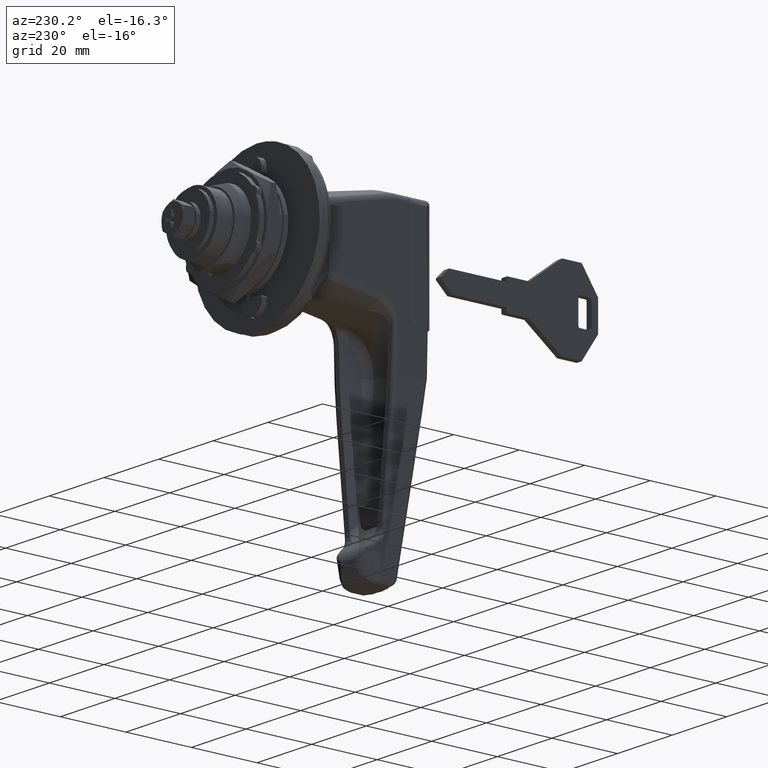
[diagram: clean part render]
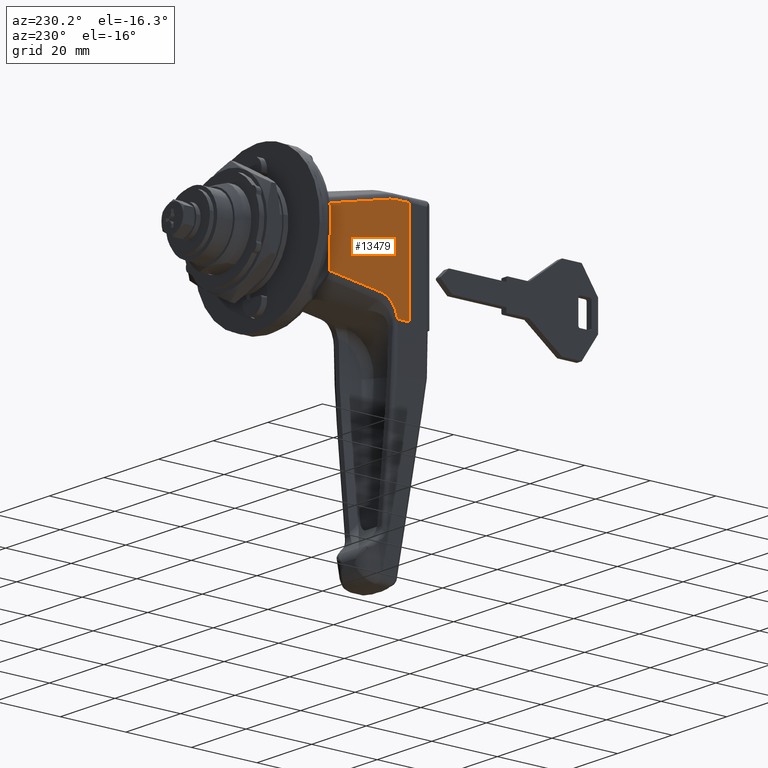
[diagram: same view with one face highlighted and labeled with its STEP entity id]
A machine part, auxiliary view. The second image highlights one B-rep face of the part: STEP entity #13479.
In plain terms, the highlighted face is a freeform B-spline surface patch.
Its self-contained STEP definition (entity closure, byte-faithful):
#6882=CARTESIAN_POINT('',(-33.330451468540403,11.500000000000000,-16.269321783100999));
#6883=VERTEX_POINT('',#6882);
#6977=CARTESIAN_POINT('',(-28.381807645060050,11.500000000000000,-10.600484931019420));
#6978=VERTEX_POINT('',#6977);
#7011=CARTESIAN_POINT('',(-28.381807645060039,11.500000000000000,-10.600484931019400));
#7012=CARTESIAN_POINT('',(-29.414859256081009,11.500000000000000,-10.749748124560901));
#7013=CARTESIAN_POINT('',(-30.339846837864059,11.500000000000000,-11.334070113294249));
#7014=CARTESIAN_POINT('',(-31.200112731855079,11.500000000000000,-11.877506898734801));
#7015=CARTESIAN_POINT('',(-31.834835637916122,11.500000000000000,-12.709738296018751));
#7016=CARTESIAN_POINT('',(-32.831586404484028,11.500000000000000,-14.016650769610751));
#7017=CARTESIAN_POINT('',(-33.330451468540403,11.500000000000000,-16.269321783100999));
#7018=B_SPLINE_CURVE_WITH_KNOTS('',2,(#7011,#7012,#7013,#7014,#7015,#7016,#7017),.UNSPECIFIED.,.F.,.U.,(3,2,2,3),(0.0,0.250000000000000,0.500000000000000,1.0),.UNSPECIFIED.);
#7019=EDGE_CURVE('',#6978,#6883,#7018,.T.);
#7064=CARTESIAN_POINT('',(-12.500000000000000,11.500000000000000,-8.269973172099720));
#7065=VERTEX_POINT('',#7064);
#7094=CARTESIAN_POINT('',(-12.500000000000000,11.500000000000000,-8.269973172099720));
#7095=CARTESIAN_POINT('',(-17.791798085537302,11.500000000000000,-9.061378927934664));
#7096=CARTESIAN_POINT('',(-23.086015636810838,11.500000000000000,-9.836296678815225));
#7097=CARTESIAN_POINT('',(-28.381807645060050,11.500000000000000,-10.600484931019420));
#7098=QUASI_UNIFORM_CURVE('',3,(#7094,#7095,#7096,#7097),.UNSPECIFIED.,.F.,.U.);
#7099=EDGE_CURVE('',#7065,#6978,#7098,.T.);
#7878=CARTESIAN_POINT('',(-36.799999999999997,11.500000000000000,12.843134832984401));
#7879=VERTEX_POINT('',#7878);
#7900=CARTESIAN_POINT('',(-32.764732462137900,11.500000000000000,12.843134832984401));
#7901=VERTEX_POINT('',#7900);
#7915=CARTESIAN_POINT('',(-36.799999999999997,11.500000000000000,12.843134832984401));
#7916=CARTESIAN_POINT('',(-32.764732462137900,11.500000000000000,12.843134832984401));
#7917=QUASI_UNIFORM_CURVE('',1,(#7915,#7916),.UNSPECIFIED.,.F.,.U.);
#7918=EDGE_CURVE('',#7879,#7901,#7917,.T.);
#7973=CARTESIAN_POINT('',(-31.136026492427600,11.500000000000000,12.657212296361701));
#7974=VERTEX_POINT('',#7973);
#7988=CARTESIAN_POINT('',(-32.764732462137900,11.500000000000000,12.843134832984401));
#7989=CARTESIAN_POINT('',(-32.489744181526383,11.500000000000000,12.843134832984401));
#7990=CARTESIAN_POINT('',(-32.216545122260293,11.500000000000000,12.827461017752750));
#7991=CARTESIAN_POINT('',(-31.673648544268200,11.500000000000000,12.765439429820340));
#7992=CARTESIAN_POINT('',(-31.403951149660720,11.500000000000000,12.719090569825269));
#7993=CARTESIAN_POINT('',(-31.136026492427600,11.500000000000000,12.657212296361660));
#7994=B_SPLINE_CURVE_WITH_KNOTS('',3,(#7988,#7989,#7990,#7991,#7992,#7993),.UNSPECIFIED.,.F.,.U.,(4,2,4),(0.0,0.500000000000000,1.0),.UNSPECIFIED.);
#7995=EDGE_CURVE('',#7901,#7974,#7994,.T.);
#8048=CARTESIAN_POINT('',(-12.500000000000000,11.500000000000000,8.238492369831851));
#8049=VERTEX_POINT('',#8048);
#8072=CARTESIAN_POINT('',(-31.136026492427600,11.500000000000000,12.657212296361701));
#8073=CARTESIAN_POINT('',(-28.025749076179441,11.500000000000000,11.938881443021501));
#8074=CARTESIAN_POINT('',(-24.917103823665510,11.500000000000000,11.213590256564951));
#8075=CARTESIAN_POINT('',(-18.704454023555481,11.500000000000000,9.743217680349506));
#8076=CARTESIAN_POINT('',(-15.600432493462250,11.500000000000000,8.998230817669533));
#8077=CARTESIAN_POINT('',(-12.500000000000000,11.500000000000000,8.238492369831851));
#8078=B_SPLINE_CURVE_WITH_KNOTS('',3,(#8072,#8073,#8074,#8075,#8076,#8077),.UNSPECIFIED.,.F.,.U.,(4,2,4),(0.0,0.500000000000000,1.0),.UNSPECIFIED.);
#8079=EDGE_CURVE('',#7974,#8049,#8078,.T.);
#12603=CARTESIAN_POINT('',(-36.799999999999997,11.500000000000000,-16.269321783100999));
#12604=VERTEX_POINT('',#12603);
#12605=CARTESIAN_POINT('',(-36.799999999999997,11.500000000000000,-16.269321783100999));
#12606=CARTESIAN_POINT('',(-36.799999999999997,11.500000000000000,12.843134832984401));
#12607=QUASI_UNIFORM_CURVE('',1,(#12605,#12606),.UNSPECIFIED.,.F.,.U.);
#12608=EDGE_CURVE('',#12604,#7879,#12607,.T.);
#13202=CARTESIAN_POINT('',(-12.500000000000000,11.500000000000000,8.238492369831851));
#13203=CARTESIAN_POINT('',(-12.500000000000000,11.500000000000000,-8.269973172099720));
#13204=QUASI_UNIFORM_CURVE('',1,(#13202,#13203),.UNSPECIFIED.,.F.,.U.);
#13205=EDGE_CURVE('',#8049,#7065,#13204,.T.);
#13440=CARTESIAN_POINT('',(-33.330451468540403,11.500000000000000,-16.269321783100999));
#13441=CARTESIAN_POINT('',(-36.799999999999997,11.500000000000000,-16.269321783100999));
#13442=QUASI_UNIFORM_CURVE('',1,(#13440,#13441),.UNSPECIFIED.,.F.,.U.);
#13443=EDGE_CURVE('',#6883,#12604,#13442,.T.);
#13464=CARTESIAN_POINT('',(-38.013784268568841,11.500000000000000,-17.723488661361959));
#13465=CARTESIAN_POINT('',(-38.013784268568841,11.500000000000000,14.297302752387941));
#13466=CARTESIAN_POINT('',(-11.286214427877580,11.500000000000000,-17.723488661361959));
#13467=CARTESIAN_POINT('',(-11.286214427877580,11.500000000000000,14.297302752387941));
#13468=B_SPLINE_SURFACE_WITH_KNOTS('',1,1,((#13464,#13466),(#13465,#13467)),.UNSPECIFIED.,.F.,.F.,.U.,(2,2),(2,2),(0.0,32.020791413749912),(0.0,26.727569840691270),.UNSPECIFIED.);
#13469=ORIENTED_EDGE('',*,*,#7099,.T.);
#13470=ORIENTED_EDGE('',*,*,#7019,.T.);
#13471=ORIENTED_EDGE('',*,*,#13443,.T.);
#13472=ORIENTED_EDGE('',*,*,#12608,.T.);
#13473=ORIENTED_EDGE('',*,*,#7918,.T.);
#13474=ORIENTED_EDGE('',*,*,#7995,.T.);
#13475=ORIENTED_EDGE('',*,*,#8079,.T.);
#13476=ORIENTED_EDGE('',*,*,#13205,.T.);
#13477=EDGE_LOOP('',(#13469,#13470,#13471,#13472,#13473,#13474,#13475,#13476));
#13478=FACE_OUTER_BOUND('',#13477,.T.);
#13479=ADVANCED_FACE('',(#13478),#13468,.T.);